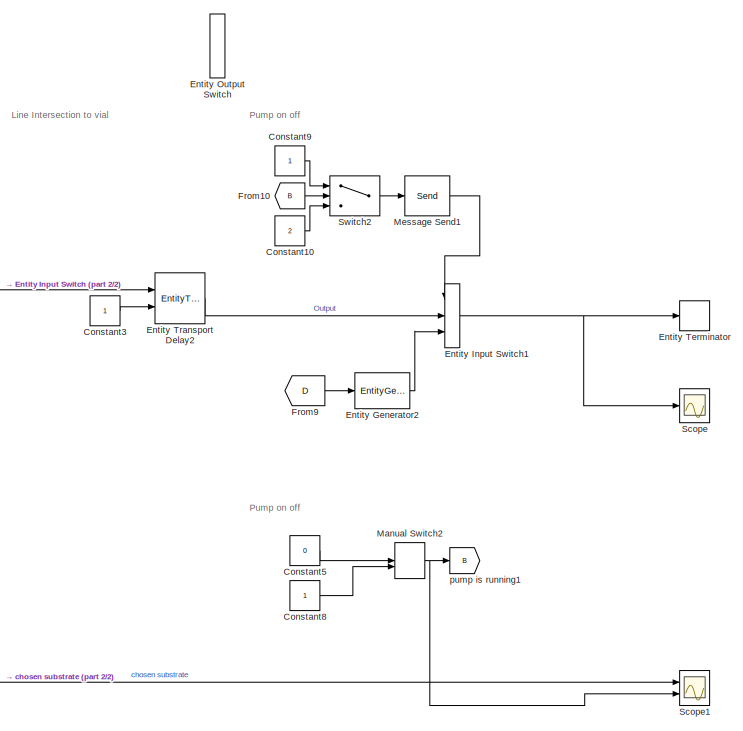
[diagram: root canvas - part 1/2, right side, full height]
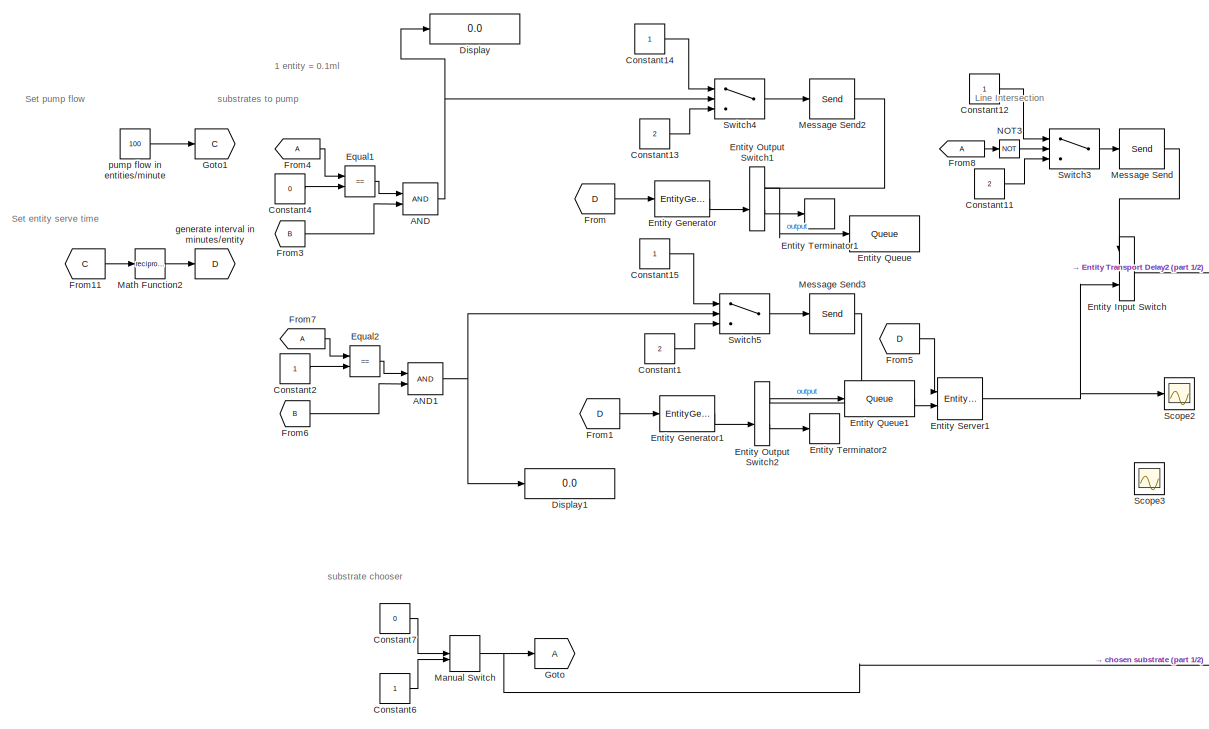
[diagram: root canvas - part 2/2, left side, full height]
MODEL slx_d0d4aa0a1a93
KIND model
CONFIG AbsTol = auto
CONFIG EnableMultiTasking = off
CONFIG FixedStep = auto
CONFIG MaxStep = auto
CONFIG MinStep = auto
CONFIG RelTol = 1e-3
CONFIG SampleTimeConstraint = Unconstrained
CONFIG SolverName = VariableStepAuto
CONFIG StartTime = 0.0
CONFIG StopTime = 100.0
BLOCK [Logic] AND
  AllPortsSameDT = off
  IconShape = distinctive
  OutDataTypeStr = boolean
  Ports = [2, 1]
BLOCK [Logic] AND1
  AllPortsSameDT = off
  IconShape = distinctive
  OutDataTypeStr = boolean
  Ports = [2, 1]
BLOCK [Constant] Constant1
  Value = 2
BLOCK [Constant] Constant10
  Value = 2
BLOCK [Constant] Constant11
  Value = 2
BLOCK [Constant] Constant12
BLOCK [Constant] Constant13
  Value = 2
BLOCK [Constant] Constant14
BLOCK [Constant] Constant15
BLOCK [Constant] Constant2
BLOCK [Constant] Constant3
BLOCK [Constant] Constant4
  Value = 0
BLOCK [Constant] Constant5
  Value = 0
BLOCK [Constant] Constant6
BLOCK [Constant] Constant7
  Value = 0
BLOCK [Constant] Constant8
BLOCK [Constant] Constant9
BLOCK [Display] Display
  Decimation = 1
  Ports = [1]
BLOCK [Display] Display1
  Decimation = 1
  Ports = [1]
BLOCK [EntityGenerator] Entity Generator
  AttributeInitialValue = 0
  AttributeName = Substrate
  EntityType = Structured
  EntityTypeName = Entity
  GenerateEntityAtSimulationStart = off
  InputPortMap = u1
  OutputPortMap = o3
  OutputPortMessageModes = m
  Ports = [1, 1]
  TimeSource = Signal port
BLOCK [EntityGenerator] Entity Generator1
  AttributeInitialValue = 0
  AttributeName = Substrate
  EntityType = Structured
  EntityTypeName = Entity
  GenerateEntityAtSimulationStart = off
  InputPortMap = u1
  OutputPortMap = o3
  OutputPortMessageModes = m
  Ports = [1, 1]
  TimeSource = Signal port
BLOCK [EntityGenerator] Entity Generator2
  AttributeInitialValue = -1
  AttributeName = Substrate
  EntityType = Structured
  EntityTypeName = Entity
  GenerateEntityAtSimulationStart = off
  InputPortMap = u1
  OutputPortMap = o3
  OutputPortMessageModes = m
  Ports = [1, 1]
  TimeSource = Signal port
BLOCK [EntityInputSwitch] Entity Input Switch
  ActivePortSelection = Switch
  InputPortMap = u0,u1,u2
  InputPortMessageModes = m,m,m
  OutputPortMap = o0
  OutputPortMessageModes = m
  Ports = [3, 1]
  SwitchingCriterion = From control port
BLOCK [EntityInputSwitch] Entity Input Switch1
  ActivePortSelection = Switch
  InputPortMap = u0,u1,u2
  InputPortMessageModes = m,m,m
  OutputPortMap = o0
  OutputPortMessageModes = m
  Ports = [3, 1]
  SwitchingCriterion = From control port
BLOCK [EntityOutputSwitch] Entity Output Switch
  InputPortMap = u1
  InputPortMessageModes = m
  OutputPortMap = o0,o1
  OutputPortMessageModes = m,m
  Ports = [1, 2]
  SwitchAttributeName = Attribute1
BLOCK [EntityOutputSwitch] Entity Output Switch1
  InputPortMap = u0,u1
  InputPortMessageModes = m,m
  OutputPortMap = o0,o1
  OutputPortMessageModes = m,m
  Ports = [2, 2]
  SwitchAttributeName = Attribute1
  SwitchingCriterion = From control port
BLOCK [EntityOutputSwitch] Entity Output Switch2
  InputPortMap = u0,u1
  InputPortMessageModes = m,m
  OutputPortMap = o0,o1
  OutputPortMessageModes = m,m
  Ports = [2, 2]
  SwitchAttributeName = Attribute1
  SwitchingCriterion = From control port
BLOCK [Queue] Entity Queue
  InputPortMap = u0
  InputPortMessageModes = m
  OutputPortMap = o5
  OutputPortMessageModes = m
  Ports = [1, 1]
BLOCK [Queue] Entity Queue1
  InputPortMap = u0
  InputPortMessageModes = m
  OutputPortMap = o5
  OutputPortMessageModes = m
  Ports = [1, 1]
BLOCK [EntityServer] Entity Server1
  Capacity = 1
  InputPortMap = u0,u2
  InputPortMessageModes = n,m
  OutputPortMap = o9
  OutputPortMessageModes = m
  Ports = [2, 1]
  ServiceTimeSource = Signal port
BLOCK [EntityTerminator] Entity Terminator
  InputPortMap = u0
  InputPortMessageModes = m
  Ports = [1]
BLOCK [EntityTerminator] Entity Terminator1
  InputPortMap = u0
  InputPortMessageModes = m
  Ports = [1]
BLOCK [EntityTerminator] Entity Terminator2
  InputPortMap = u0
  InputPortMessageModes = m
  Ports = [1]
BLOCK [EntityTransportDelay] Entity Transport Delay2
  InputPortMessageModes = m,n
  OutputPortMessageModes = m
  Ports = [2, 1]
BLOCK [RelationalOperator] Equal1
  InputSameDT = off
  Operator = ==
  OutDataTypeStr = boolean
  Ports = [2, 1]
  RndMeth = Simplest
BLOCK [RelationalOperator] Equal2
  InputSameDT = off
  Operator = ==
  OutDataTypeStr = boolean
  Ports = [2, 1]
  RndMeth = Simplest
BLOCK [From] From
  GotoTag = D
BLOCK [From] From1
  GotoTag = D
BLOCK [From] From10
  GotoTag = B
BLOCK [From] From11
  GotoTag = C
BLOCK [From] From3
  GotoTag = B
BLOCK [From] From4
BLOCK [From] From5
  GotoTag = D
BLOCK [From] From6
  GotoTag = B
BLOCK [From] From7
BLOCK [From] From8
BLOCK [From] From9
  GotoTag = D
BLOCK [Goto] Goto
BLOCK [Goto] Goto1
  GotoTag = C
BLOCK [ManualSwitch] Manual Switch
  CurrentSetting = 0
BLOCK [ManualSwitch] Manual Switch2
BLOCK [Math] Math Function2
  Operator = reciprocal
  Ports = [1, 1]
BLOCK [Send] Message Send
  InputPortMap = u1
  OutputPortMessageModes = m
  Ports = [1, 1]
BLOCK [Send] Message Send1
  InputPortMap = u1
  OutputPortMessageModes = m
  Ports = [1, 1]
BLOCK [Send] Message Send2
  InputPortMap = u1
  OutputPortMessageModes = m
  Ports = [1, 1]
BLOCK [Send] Message Send3
  InputPortMap = u1
  OutputPortMessageModes = m
  Ports = [1, 1]
BLOCK [Logic] NOT3
  AllPortsSameDT = off
  IconShape = distinctive
  Operator = NOT
  OutDataTypeStr = boolean
  Ports = [1, 1]
BLOCK [Scope] Scope
  Floating = off
  NumInputPorts = 1
  Ports = [1]
  ScopeSpecificationString = Simulink.scopes.TimeScopeBlockCfg('CurrentConfiguration', extmgr.ConfigurationSet(extmgr.Configuration('Core','General UI',true),extmgr.Configuration('Core','Source UI',true),extmgr.Configuration('Sources','WiredSimulink',true),extmgr.Configuration('Visuals','Time Domain',true,'SerializedDisplays',{struct('MinYLimReal','-1.25','MaxYLimReal','1.25','YLabelReal','','MinYLimMag','0.00000','MaxYLimMag...<+1447ch>
BLOCK [Scope] Scope1
  Floating = off
  NumInputPorts = 2
  Ports = [2]
  ScopeSpecificationString = Simulink.scopes.TimeScopeBlockCfg('CurrentConfiguration', extmgr.ConfigurationSet(extmgr.Configuration('Core','General UI',true),extmgr.Configuration('Core','Source UI',true),extmgr.Configuration('Sources','WiredSimulink',true,'DataLoggingVariableName','ScopeData1'),extmgr.Configuration('Visuals','Time Domain',true,'SerializedDisplays',{struct('MinYLimReal','0.9','MaxYLimReal','1.1','YLabelReal','...<+2106ch>
BLOCK [Scope] Scope2
  Floating = off
  NumInputPorts = 1
  Ports = [1]
  ScopeSpecificationString = Simulink.scopes.TimeScopeBlockCfg('CurrentConfiguration', extmgr.ConfigurationSet(extmgr.Configuration('Core','General UI',true),extmgr.Configuration('Core','Source UI',true),extmgr.Configuration('Sources','WiredSimulink',true,'DataLoggingVariableName','ScopeData2'),extmgr.Configuration('Visuals','Time Domain',true,'SerializedDisplays',{struct('MinYLimReal','-0.125','MaxYLimReal','1.125','YLabelRe...<+1491ch>
BLOCK [Scope] Scope3
  Floating = off
  NumInputPorts = 1
  Ports = [1]
  ScopeSpecificationString = Simulink.scopes.TimeScopeBlockCfg('CurrentConfiguration', extmgr.ConfigurationSet(extmgr.Configuration('Core','General UI',true),extmgr.Configuration('Core','Source UI',true),extmgr.Configuration('Sources','WiredSimulink',true,'DataLoggingVariableName','ScopeData3'),extmgr.Configuration('Visuals','Time Domain',true,'SerializedDisplays',{struct('MinYLimReal','-0.125','MaxYLimReal','1.125','YLabelRe...<+1491ch>
BLOCK [Switch] Switch2
  Criteria = u2 > Threshold
  InputSameDT = off
  SaturateOnIntegerOverflow = off
BLOCK [Switch] Switch3
  Criteria = u2 > Threshold
  InputSameDT = off
  SaturateOnIntegerOverflow = off
BLOCK [Switch] Switch4
  Criteria = u2 > Threshold
  InputSameDT = off
  SaturateOnIntegerOverflow = off
BLOCK [Switch] Switch5
  Criteria = u2 > Threshold
  InputSameDT = off
  SaturateOnIntegerOverflow = off
BLOCK [Goto] generate interval in minutes//entity
  GotoTag = D
BLOCK [Constant] pump flow in entities//minute
  Value = 100
BLOCK [Goto] pump is running1
  GotoTag = B
ANNOTATION (root): 1 entity = 0.1ml
ANNOTATION (root): Line Intersection
ANNOTATION (root): Line Intersection to vial
ANNOTATION (root): Pump on off
ANNOTATION (root): Set entity serve time
ANNOTATION (root): Set pump flow
ANNOTATION (root): substrate chooser
ANNOTATION (root): substrates to pump
NET AND1:1 -> Display1:1, Switch5:2
NET AND:1 -> Display:1, Switch4:2
LINE Constant10:1 -> Switch2:3
LINE Constant11:1 -> Switch3:3
LINE Constant12:1 -> Switch3:1
LINE Constant13:1 -> Switch4:3
LINE Constant14:1 -> Switch4:1
LINE Constant15:1 -> Switch5:1
LINE Constant1:1 -> Switch5:3
LINE Constant2:1 -> Equal2:2
LINE Constant3:1 -> Entity Transport Delay2:2
LINE Constant4:1 -> Equal1:2
LINE Constant5:1 -> Manual Switch2:1
LINE Constant6:1 -> Manual Switch:2
LINE Constant7:1 -> Manual Switch:1
LINE Constant8:1 -> Manual Switch2:2
LINE Constant9:1 -> Switch2:1
LINE Entity Generator1:1 -> Entity Output Switch2:2
LINE Entity Generator2:1 -> Entity Input Switch1:3
LINE Entity Generator:1 -> Entity Output Switch1:2
NET Entity Input Switch1:1 -> Entity Terminator:1, Scope:1
LINE Entity Input Switch:1 -> Entity Transport Delay2:1
LINE Entity Output Switch1:1 -> Entity Queue:1
LINE Entity Output Switch1:2 -> Entity Terminator1:1
LINE Entity Output Switch2:1 -> Entity Queue1:1
LINE Entity Output Switch2:2 -> Entity Terminator2:1
LINE Entity Queue1:1 -> Entity Server1:2
NET Entity Server1:1 -> Entity Input Switch:3, Scope2:1
LINE Entity Transport Delay2:1 -> Entity Input Switch1:2
LINE Equal1:1 -> AND:1
LINE Equal2:1 -> AND1:1
LINE From10:1 -> Switch2:2
LINE From11:1 -> Math Function2:1
LINE From1:1 -> Entity Generator1:1
LINE From3:1 -> AND:2
LINE From4:1 -> Equal1:1
LINE From5:1 -> Entity Server1:1
LINE From6:1 -> AND1:2
LINE From7:1 -> Equal2:1
LINE From8:1 -> NOT3:1
LINE From9:1 -> Entity Generator2:1
LINE From:1 -> Entity Generator:1
NET Manual Switch2:1 -> Scope1:2, pump is running1:1
NET Manual Switch:1 -> Goto:1, Scope1:1
LINE Math Function2:1 -> generate interval in minutes//entity:1
LINE Message Send1:1 -> Entity Input Switch1:1
LINE Message Send2:1 -> Entity Output Switch1:1
LINE Message Send3:1 -> Entity Output Switch2:1
LINE Message Send:1 -> Entity Input Switch:1
LINE NOT3:1 -> Switch3:2
LINE Switch2:1 -> Message Send1:1
LINE Switch3:1 -> Message Send:1
LINE Switch4:1 -> Message Send2:1
LINE Switch5:1 -> Message Send3:1
LINE pump flow in entities//minute:1 -> Goto1:1
note: NET lines group one-source signal fan-out (src -> all destinations, sorted); 1:1 wires keep LINE
